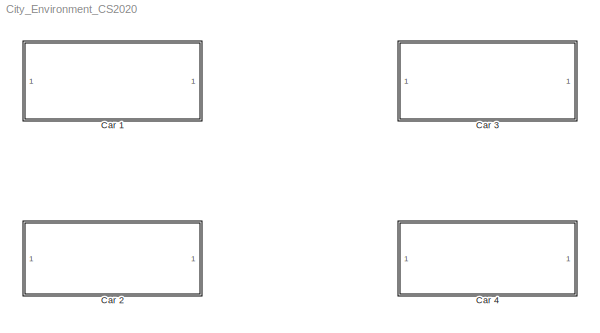
MODEL City_Environment_CS2020
KIND model
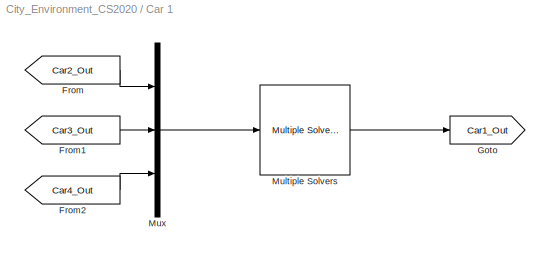
BLOCK [SubSystem] Car 1
  FunctionWithSeparateData = off
  MaskHideContents = off
  MinAlgLoopOccurrences = off
  Opaque = off
  Ports = []
  PropExecContextOutsideSubsystem = off
  RTWSystemCode = Auto
  RequestExecContextInheritance = off
  SID = 107
BLOCK [From] Car 1/From
  GotoTag = Car2_Out
  SID = 151
  TagVisibility = global
BLOCK [From] Car 1/From1
  GotoTag = Car3_Out
  SID = 152
  TagVisibility = global
BLOCK [From] Car 1/From2
  GotoTag = Car4_Out
  SID = 153
  TagVisibility = global
BLOCK [Goto] Car 1/Goto
  GotoTag = Car1_Out
  SID = 137
  TagVisibility = global
BLOCK [Reference] Car 1/Multiple Solvers  REF=Solver_SF/Multiple Solvers
  Ports = [1, 1]
  Priority = 1
  Run_RTs = off
  SID = 110
  SIMFILE = <path>
  SourceBlock = Solver_SF/Multiple Solvers
  SourceType = Vehicle math model library
  StopMode_ind = Vehicle Model
  iVehicle = 1
  vs_scx = on
  vs_state_ind = Run
BLOCK [Mux] Car 1/Mux
  DisplayOption = bar
  Inputs = 3
  Ports = [3, 1]
  SID = 115
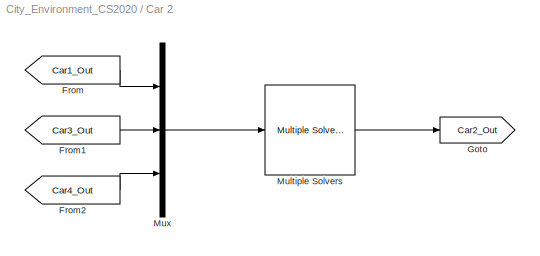
BLOCK [SubSystem] Car 2
  FunctionWithSeparateData = off
  MaskHideContents = off
  MinAlgLoopOccurrences = off
  Opaque = off
  Ports = []
  PropExecContextOutsideSubsystem = off
  RTWSystemCode = Auto
  RequestExecContextInheritance = off
  SID = 116
BLOCK [From] Car 2/From
  GotoTag = Car1_Out
  SID = 148
  TagVisibility = global
BLOCK [From] Car 2/From1
  GotoTag = Car3_Out
  SID = 149
  TagVisibility = global
BLOCK [From] Car 2/From2
  GotoTag = Car4_Out
  SID = 150
  TagVisibility = global
BLOCK [Goto] Car 2/Goto
  GotoTag = Car2_Out
  SID = 139
  TagVisibility = global
BLOCK [Reference] Car 2/Multiple Solvers  REF=Solver_SF/Multiple Solvers
  Ports = [1, 1]
  Priority = 1
  Run_RTs = off
  SID = 120
  SIMFILE = <path>
  SourceBlock = Solver_SF/Multiple Solvers
  SourceType = Vehicle math model library
  StopMode_ind = Vehicle Model
  iVehicle = 2
  vs_scx = on
  vs_state_ind = Run
BLOCK [Mux] Car 2/Mux
  DisplayOption = bar
  Inputs = 3
  Ports = [3, 1]
  SID = 121
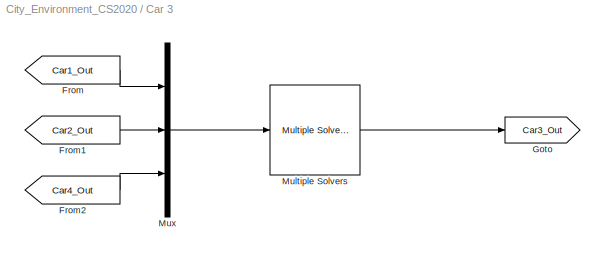
BLOCK [SubSystem] Car 3
  FunctionWithSeparateData = off
  MaskHideContents = off
  MinAlgLoopOccurrences = off
  Opaque = off
  Ports = []
  PropExecContextOutsideSubsystem = off
  RTWSystemCode = Auto
  RequestExecContextInheritance = off
  SID = 123
BLOCK [From] Car 3/From
  GotoTag = Car1_Out
  SID = 145
  TagVisibility = global
BLOCK [From] Car 3/From1
  GotoTag = Car2_Out
  SID = 146
  TagVisibility = global
BLOCK [From] Car 3/From2
  GotoTag = Car4_Out
  SID = 147
  TagVisibility = global
BLOCK [Goto] Car 3/Goto
  GotoTag = Car3_Out
  SID = 140
  TagVisibility = global
BLOCK [Reference] Car 3/Multiple Solvers  REF=Solver_SF/Multiple Solvers
  Ports = [1, 1]
  Priority = 1
  Run_RTs = off
  SID = 127
  SIMFILE = <path>
  SourceBlock = Solver_SF/Multiple Solvers
  SourceType = Vehicle math model library
  StopMode_ind = Vehicle Model
  iVehicle = 3
  vs_scx = on
  vs_state_ind = Run
BLOCK [Mux] Car 3/Mux
  DisplayOption = bar
  Inputs = 3
  Ports = [3, 1]
  SID = 128
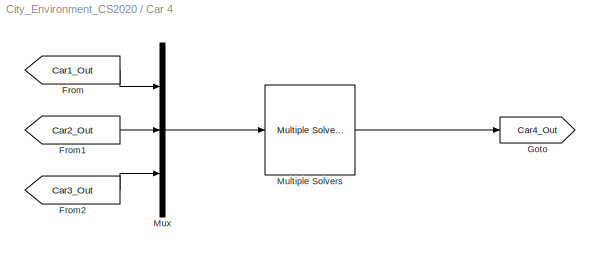
BLOCK [SubSystem] Car 4
  FunctionWithSeparateData = off
  MaskHideContents = off
  MinAlgLoopOccurrences = off
  Opaque = off
  Ports = []
  PropExecContextOutsideSubsystem = off
  RTWSystemCode = Auto
  RequestExecContextInheritance = off
  SID = 130
BLOCK [From] Car 4/From
  GotoTag = Car1_Out
  SID = 142
  TagVisibility = global
BLOCK [From] Car 4/From1
  GotoTag = Car2_Out
  SID = 143
  TagVisibility = global
BLOCK [From] Car 4/From2
  GotoTag = Car3_Out
  SID = 144
  TagVisibility = global
BLOCK [Goto] Car 4/Goto
  GotoTag = Car4_Out
  SID = 141
  TagVisibility = global
BLOCK [Reference] Car 4/Multiple Solvers  REF=Solver_SF/Multiple Solvers
  Ports = [1, 1]
  Priority = 1
  Run_RTs = off
  SID = 134
  SIMFILE = <path>
  SourceBlock = Solver_SF/Multiple Solvers
  SourceType = Vehicle math model library
  StopMode_ind = Vehicle Model
  iVehicle = 4
  vs_scx = on
  vs_state_ind = Run
BLOCK [Mux] Car 4/Mux
  DisplayOption = bar
  Inputs = 3
  Ports = [3, 1]
  SID = 135
LINE Car 1/From1:1 -> Car 1/Mux:2
LINE Car 1/From2:1 -> Car 1/Mux:3
LINE Car 1/From:1 -> Car 1/Mux:1
LINE Car 1/Multiple Solvers:1 -> Car 1/Goto:1
LINE Car 1/Mux:1 -> Car 1/Multiple Solvers:1
LINE Car 2/From1:1 -> Car 2/Mux:2
LINE Car 2/From2:1 -> Car 2/Mux:3
LINE Car 2/From:1 -> Car 2/Mux:1
LINE Car 2/Multiple Solvers:1 -> Car 2/Goto:1
LINE Car 2/Mux:1 -> Car 2/Multiple Solvers:1
LINE Car 3/From1:1 -> Car 3/Mux:2
LINE Car 3/From2:1 -> Car 3/Mux:3
LINE Car 3/From:1 -> Car 3/Mux:1
LINE Car 3/Multiple Solvers:1 -> Car 3/Goto:1
LINE Car 3/Mux:1 -> Car 3/Multiple Solvers:1
LINE Car 4/From1:1 -> Car 4/Mux:2
LINE Car 4/From2:1 -> Car 4/Mux:3
LINE Car 4/From:1 -> Car 4/Mux:1
LINE Car 4/Multiple Solvers:1 -> Car 4/Goto:1
LINE Car 4/Mux:1 -> Car 4/Multiple Solvers:1
note: 4 file-system paths scrubbed to <path> (not preserved elsewhere — flat text is the only slx artifact)
